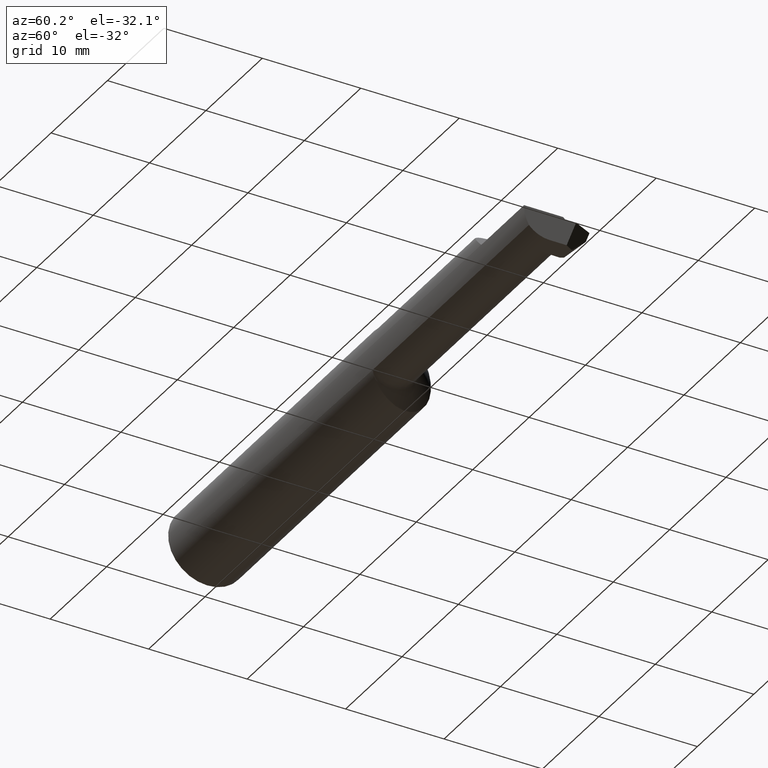
[diagram: clean part render]
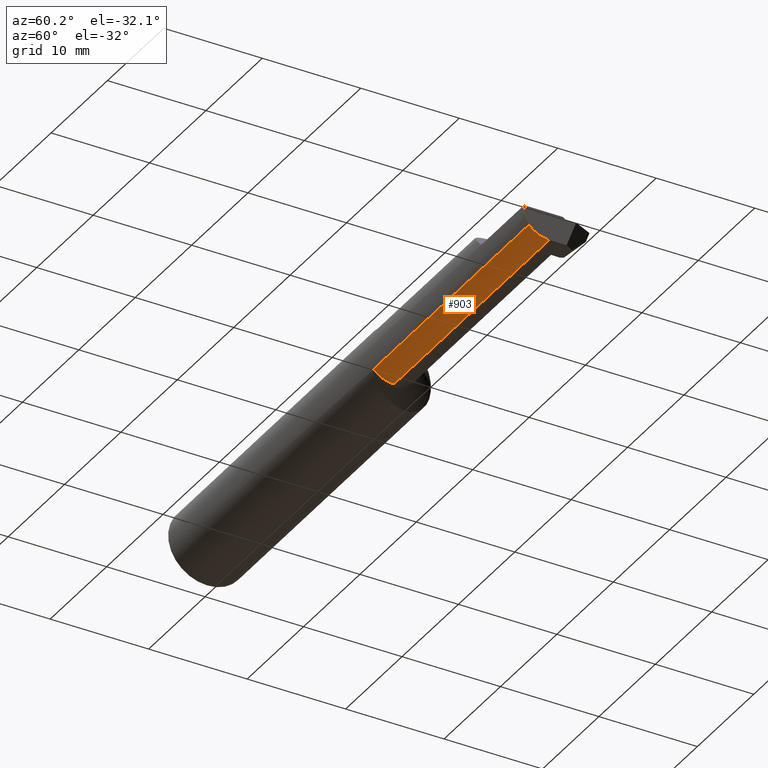
[diagram: same view with one face highlighted and labeled with its STEP entity id]
A machine part, auxiliary view. The second image highlights one B-rep face of the part: STEP entity #903.
In plain terms, the highlighted cylindrical surface (edge-blend (fillet) strip) has radius 2.8194 mm, axis along (-1, -0, -0).
Its self-contained STEP definition (entity closure, byte-faithful):
#35 = FACE_OUTER_BOUND ( 'NONE', #143, .T. ) ;
#56 = DIRECTION ( 'NONE',  ( -1.000000000000000000, -0.000000000000000000, -0.000000000000000000 ) ) ;
#78 = CARTESIAN_POINT ( 'NONE',  ( 1.415355339059327200, -0.1368622504537206630, -0.07507286061382655029 ) ) ;
#95 = CARTESIAN_POINT ( 'NONE',  ( 1.405000000000000249, -0.05509999999999980885, -0.1110000000000000292 ) ) ;
#116 = CYLINDRICAL_SURFACE ( 'NONE', #190, 0.1110000000000000292 ) ;
#125 = ORIENTED_EDGE ( 'NONE', *, *, #440, .F. ) ;
#131 = DIRECTION ( 'NONE',  ( 0.000000000000000000, 0.000000000000000000, 1.000000000000000000 ) ) ;
#132 = CARTESIAN_POINT ( 'NONE',  ( 2.500000000000000000, -0.05509999999999984355, -0.1109999999999999737 ) ) ;
#133 = VECTOR ( 'NONE', #418, 39.37007874015748143 ) ;
#143 = EDGE_LOOP ( 'NONE', ( #125, #235, #457, #659, #326 ) ) ;
#178 = LINE ( 'NONE', #95, #133 ) ;
#190 = AXIS2_PLACEMENT_3D ( 'NONE', #609, #853, #131 ) ;
#198 = EDGE_CURVE ( 'NONE', #1028, #804, #339, .T. ) ;
#218 = LINE ( 'NONE', #678, #724 ) ;
#232 = DIRECTION ( 'NONE',  ( 1.000000000000000000, 0.000000000000000000, 0.000000000000000000 ) ) ;
#235 = ORIENTED_EDGE ( 'NONE', *, *, #588, .F. ) ;
#325 = CIRCLE ( 'NONE', #489, 0.1109999999999999876 ) ;
#326 = ORIENTED_EDGE ( 'NONE', *, *, #198, .T. ) ;
#339 = CIRCLE ( 'NONE', #1014, 0.1110000000000000292 ) ;
#414 = DIRECTION ( 'NONE',  ( 0.000000000000000000, 1.768933104005575319E-15, 1.000000000000000000 ) ) ;
#418 = DIRECTION ( 'NONE',  ( -1.000000000000000000, -0.000000000000000000, -0.000000000000000000 ) ) ;
#440 = EDGE_CURVE ( 'NONE', #735, #804, #178, .T. ) ;
#457 = ORIENTED_EDGE ( 'NONE', *, *, #824, .F. ) ;
#489 = AXIS2_PLACEMENT_3D ( 'NONE', #580, #979, #985 ) ;
#527 = EDGE_CURVE ( 'NONE', #1024, #1028, #218, .T. ) ;
#580 = CARTESIAN_POINT ( 'NONE',  ( 2.500000000000000000, -0.05509999999999982967, 0.000000000000000000 ) ) ;
#588 = EDGE_CURVE ( 'NONE', #708, #735, #697, .T. ) ;
#609 = CARTESIAN_POINT ( 'NONE',  ( 1.405000000000000249, -0.05509999999999982967, 0.000000000000000000 ) ) ;
#659 = ORIENTED_EDGE ( 'NONE', *, *, #527, .T. ) ;
#678 = CARTESIAN_POINT ( 'NONE',  ( 1.904000000000000137, -0.1368622504537206630, -0.07507286061382655029 ) ) ;
#697 = LINE ( 'NONE', #132, #812 ) ;
#708 = VERTEX_POINT ( 'NONE', #888 ) ;
#724 = VECTOR ( 'NONE', #56, 39.37007874015748143 ) ;
#735 = VERTEX_POINT ( 'NONE', #833 ) ;
#776 = DIRECTION ( 'NONE',  ( -1.000000000000000000, -0.000000000000000000, -0.000000000000000000 ) ) ;
#804 = VERTEX_POINT ( 'NONE', #991 ) ;
#812 = VECTOR ( 'NONE', #776, 39.37007874015748143 ) ;
#824 = EDGE_CURVE ( 'NONE', #1024, #708, #325, .T. ) ;
#833 = CARTESIAN_POINT ( 'NONE',  ( 2.419640730573871856, -0.05509999999999984355, -0.1109999999999999737 ) ) ;
#853 = DIRECTION ( 'NONE',  ( -1.000000000000000000, -0.000000000000000000, -0.000000000000000000 ) ) ;
#887 = CARTESIAN_POINT ( 'NONE',  ( 2.500000000000000000, -0.1368622504537206075, -0.07507286061382667519 ) ) ;
#888 = CARTESIAN_POINT ( 'NONE',  ( 2.500000000000000000, -0.05509999999999984355, -0.1109999999999999737 ) ) ;
#903 = ADVANCED_FACE ( 'NONE', ( #35 ), #116, .T. ) ;
#952 = CARTESIAN_POINT ( 'NONE',  ( 1.415355339059327200, -0.05509999999999982967, 0.000000000000000000 ) ) ;
#979 = DIRECTION ( 'NONE',  ( 1.000000000000000000, -0.000000000000000000, -0.000000000000000000 ) ) ;
#985 = DIRECTION ( 'NONE',  ( 0.000000000000000000, 0.000000000000000000, 1.000000000000000000 ) ) ;
#991 = CARTESIAN_POINT ( 'NONE',  ( 1.415355339059327200, -0.05509999999999980885, -0.1110000000000000292 ) ) ;
#1014 = AXIS2_PLACEMENT_3D ( 'NONE', #952, #232, #414 ) ;
#1024 = VERTEX_POINT ( 'NONE', #887 ) ;
#1028 = VERTEX_POINT ( 'NONE', #78 ) ;